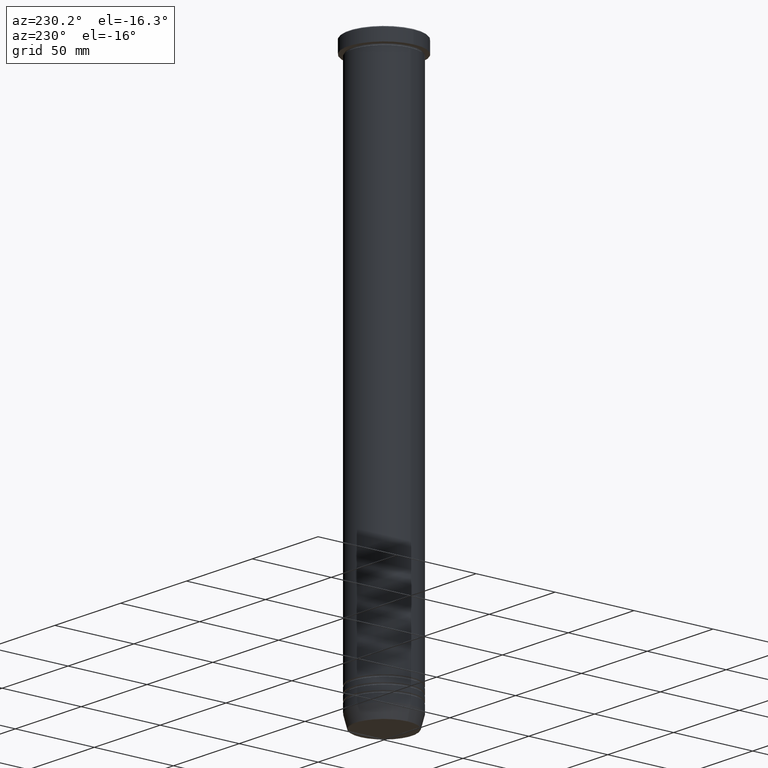
[diagram: clean part render]
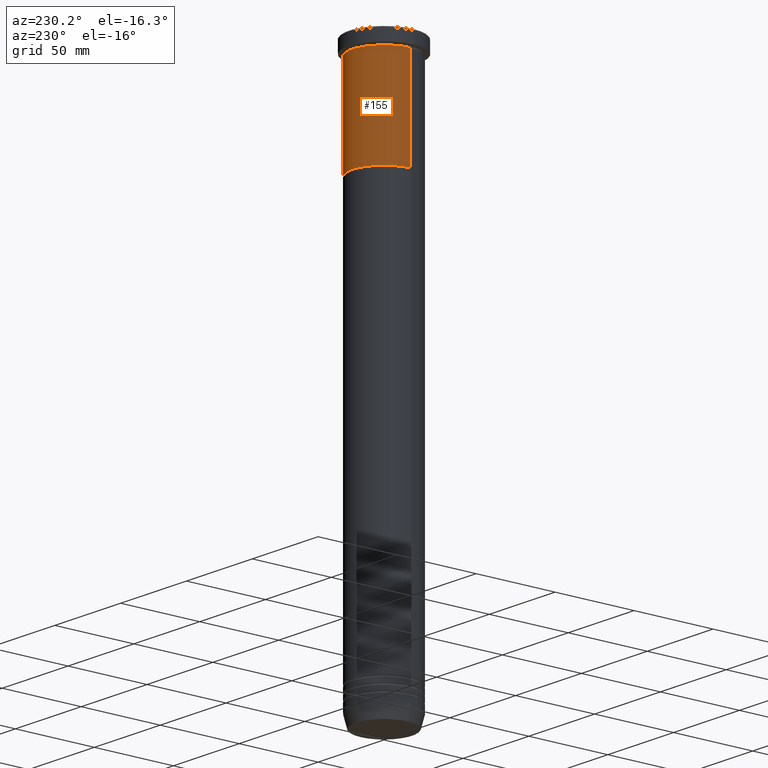
[diagram: same view with one face highlighted and labeled with its STEP entity id]
A machine part, auxiliary view. The second image highlights one B-rep face of the part: STEP entity #155.
In plain terms, the highlighted cylindrical surface (partial cylindrical patch) has radius 20 mm, axis along (-0, -0, 1).
Its self-contained STEP definition (entity closure, byte-faithful):
#74 = DIRECTION ( 'NONE',  ( 1.000000000000000000, 0.000000000000000000, 0.000000000000000000 ) ) ;
#88 = AXIS2_PLACEMENT_3D ( 'NONE', #246, #1039, #474 ) ;
#116 = DIRECTION ( 'NONE',  ( -0.000000000000000000, -0.000000000000000000, 1.000000000000000000 ) ) ;
#149 = FACE_OUTER_BOUND ( 'NONE', #630, .T. ) ;
#155 = ADVANCED_FACE ( 'NONE', ( #149 ), #226, .T. ) ;
#169 = CIRCLE ( 'NONE', #381, 20.00000000000000000 ) ;
#184 = EDGE_CURVE ( 'NONE', #604, #512, #786, .T. ) ;
#226 = CYLINDRICAL_SURFACE ( 'NONE', #393, 20.00000000000000000 ) ;
#233 = DIRECTION ( 'NONE',  ( 1.000000000000000000, 0.000000000000000000, 0.000000000000000000 ) ) ;
#242 = ORIENTED_EDGE ( 'NONE', *, *, #184, .T. ) ;
#246 = CARTESIAN_POINT ( 'NONE',  ( 0.000000000000000000, 0.000000000000000000, -70.00000000000000000 ) ) ;
#261 = CARTESIAN_POINT ( 'NONE',  ( -20.00000000000000000, 2.449293598294706513E-15, -9.000000000000001776 ) ) ;
#335 = ORIENTED_EDGE ( 'NONE', *, *, #1061, .F. ) ;
#354 = VERTEX_POINT ( 'NONE', #784 ) ;
#381 = AXIS2_PLACEMENT_3D ( 'NONE', #690, #1038, #233 ) ;
#393 = AXIS2_PLACEMENT_3D ( 'NONE', #679, #781, #74 ) ;
#474 = DIRECTION ( 'NONE',  ( 1.000000000000000000, 0.000000000000000000, 0.000000000000000000 ) ) ;
#481 = CARTESIAN_POINT ( 'NONE',  ( -20.00000000000000000, 2.449293598294706513E-15, 0.000000000000000000 ) ) ;
#512 = VERTEX_POINT ( 'NONE', #261 ) ;
#575 = VERTEX_POINT ( 'NONE', #982 ) ;
#579 = CARTESIAN_POINT ( 'NONE',  ( 20.00000000000000000, 0.000000000000000000, 0.000000000000000000 ) ) ;
#604 = VERTEX_POINT ( 'NONE', #747 ) ;
#609 = ORIENTED_EDGE ( 'NONE', *, *, #987, .T. ) ;
#613 = CIRCLE ( 'NONE', #88, 20.00000000000000000 ) ;
#630 = EDGE_LOOP ( 'NONE', ( #609, #242, #998, #335 ) ) ;
#645 = VECTOR ( 'NONE', #116, 1000.000000000000000 ) ;
#679 = CARTESIAN_POINT ( 'NONE',  ( 0.000000000000000000, 0.000000000000000000, 0.000000000000000000 ) ) ;
#690 = CARTESIAN_POINT ( 'NONE',  ( 0.000000000000000000, 0.000000000000000000, -9.000000000000001776 ) ) ;
#731 = EDGE_CURVE ( 'NONE', #354, #512, #169, .T. ) ;
#739 = VECTOR ( 'NONE', #895, 1000.000000000000000 ) ;
#747 = CARTESIAN_POINT ( 'NONE',  ( -20.00000000000000000, 2.449293598294706513E-15, -70.00000000000000000 ) ) ;
#781 = DIRECTION ( 'NONE',  ( -0.000000000000000000, -0.000000000000000000, 1.000000000000000000 ) ) ;
#784 = CARTESIAN_POINT ( 'NONE',  ( 20.00000000000000000, 0.000000000000000000, -9.000000000000001776 ) ) ;
#786 = LINE ( 'NONE', #481, #739 ) ;
#815 = LINE ( 'NONE', #579, #645 ) ;
#895 = DIRECTION ( 'NONE',  ( -0.000000000000000000, -0.000000000000000000, 1.000000000000000000 ) ) ;
#982 = CARTESIAN_POINT ( 'NONE',  ( 20.00000000000000000, 0.000000000000000000, -70.00000000000000000 ) ) ;
#987 = EDGE_CURVE ( 'NONE', #575, #604, #613, .T. ) ;
#998 = ORIENTED_EDGE ( 'NONE', *, *, #731, .F. ) ;
#1038 = DIRECTION ( 'NONE',  ( -0.000000000000000000, -0.000000000000000000, 1.000000000000000000 ) ) ;
#1039 = DIRECTION ( 'NONE',  ( -0.000000000000000000, -0.000000000000000000, 1.000000000000000000 ) ) ;
#1061 = EDGE_CURVE ( 'NONE', #575, #354, #815, .T. ) ;